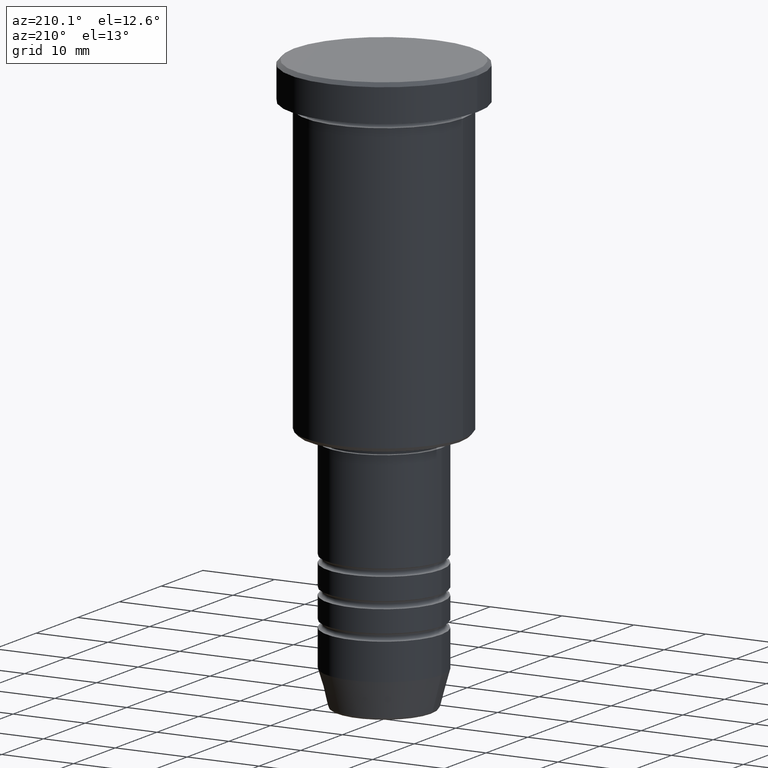
[diagram: clean part render]
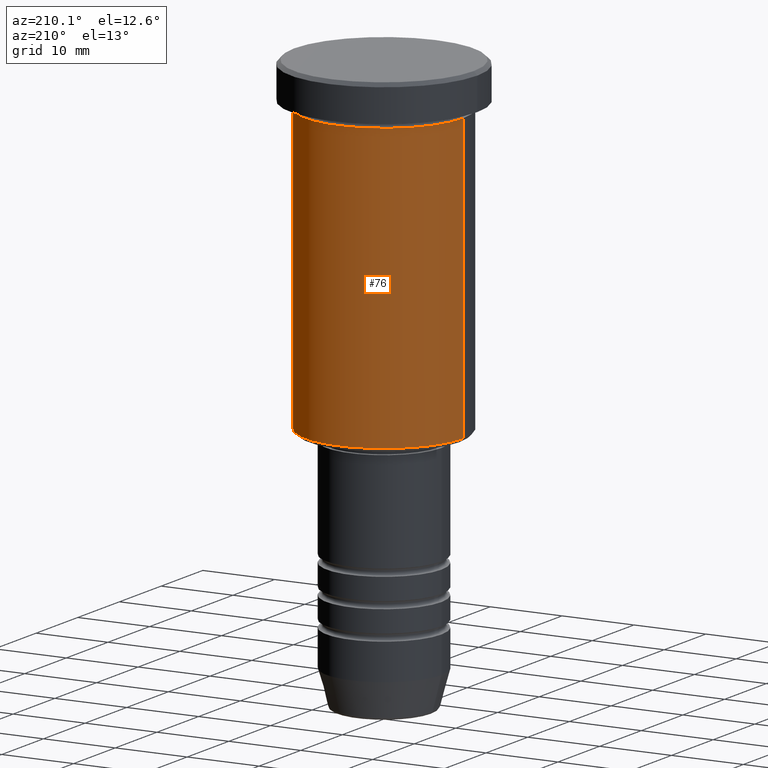
[diagram: same view with one face highlighted and labeled with its STEP entity id]
A machine part, auxiliary view. The second image highlights one B-rep face of the part: STEP entity #76.
In plain terms, the highlighted cylindrical surface (partial cylindrical patch) has radius 11 mm, axis along (-0, -0, 1).
Its self-contained STEP definition (entity closure, byte-faithful):
#2 = DIRECTION ( 'NONE',  ( -1.000000000000000000, 0.000000000000000000, 0.000000000000000000 ) ) ;
#6 = EDGE_LOOP ( 'NONE', ( #570, #182, #709, #44 ) ) ;
#8 = FACE_OUTER_BOUND ( 'NONE', #6, .T. ) ;
#16 = VECTOR ( 'NONE', #500, 1000.000000000000000 ) ;
#23 = CARTESIAN_POINT ( 'NONE',  ( 11.00000000000000000, 0.000000000000000000, -5.999999999999999112 ) ) ;
#35 = AXIS2_PLACEMENT_3D ( 'NONE', #494, #690, #953 ) ;
#44 = ORIENTED_EDGE ( 'NONE', *, *, #84, .F. ) ;
#55 = LINE ( 'NONE', #860, #16 ) ;
#76 = ADVANCED_FACE ( 'NONE', ( #8 ), #1096, .T. ) ;
#84 = EDGE_CURVE ( 'NONE', #512, #1025, #994, .T. ) ;
#170 = CARTESIAN_POINT ( 'NONE',  ( 11.00000000000000000, 0.000000000000000000, 0.000000000000000000 ) ) ;
#182 = ORIENTED_EDGE ( 'NONE', *, *, #769, .T. ) ;
#221 = CIRCLE ( 'NONE', #35, 11.00000000000000000 ) ;
#271 = DIRECTION ( 'NONE',  ( -0.000000000000000000, -0.000000000000000000, 1.000000000000000000 ) ) ;
#338 = VECTOR ( 'NONE', #271, 1000.000000000000000 ) ;
#350 = CARTESIAN_POINT ( 'NONE',  ( 11.00000000000000000, 0.000000000000000000, -45.49999999999999289 ) ) ;
#371 = CARTESIAN_POINT ( 'NONE',  ( 0.000000000000000000, 0.000000000000000000, 0.000000000000000000 ) ) ;
#415 = EDGE_CURVE ( 'NONE', #512, #578, #543, .T. ) ;
#494 = CARTESIAN_POINT ( 'NONE',  ( 0.000000000000000000, 0.000000000000000000, -5.999999999999999112 ) ) ;
#500 = DIRECTION ( 'NONE',  ( -0.000000000000000000, -0.000000000000000000, 1.000000000000000000 ) ) ;
#512 = VERTEX_POINT ( 'NONE', #350 ) ;
#543 = CIRCLE ( 'NONE', #702, 11.00000000000000000 ) ;
#554 = DIRECTION ( 'NONE',  ( -0.000000000000000000, -0.000000000000000000, 1.000000000000000000 ) ) ;
#555 = DIRECTION ( 'NONE',  ( 1.000000000000000000, 0.000000000000000000, 0.000000000000000000 ) ) ;
#570 = ORIENTED_EDGE ( 'NONE', *, *, #415, .T. ) ;
#578 = VERTEX_POINT ( 'NONE', #838 ) ;
#690 = DIRECTION ( 'NONE',  ( -0.000000000000000000, -0.000000000000000000, 1.000000000000000000 ) ) ;
#695 = CARTESIAN_POINT ( 'NONE',  ( -11.00000000000000000, 1.347111479062088405E-15, -5.999999999999999112 ) ) ;
#702 = AXIS2_PLACEMENT_3D ( 'NONE', #1105, #554, #2 ) ;
#709 = ORIENTED_EDGE ( 'NONE', *, *, #1157, .F. ) ;
#736 = DIRECTION ( 'NONE',  ( -0.000000000000000000, -0.000000000000000000, 1.000000000000000000 ) ) ;
#769 = EDGE_CURVE ( 'NONE', #578, #1152, #55, .T. ) ;
#838 = CARTESIAN_POINT ( 'NONE',  ( -11.00000000000000000, 1.347111479062088405E-15, -45.49999999999999289 ) ) ;
#860 = CARTESIAN_POINT ( 'NONE',  ( -11.00000000000000000, 1.347111479062088405E-15, 0.000000000000000000 ) ) ;
#953 = DIRECTION ( 'NONE',  ( 1.000000000000000000, 0.000000000000000000, 0.000000000000000000 ) ) ;
#994 = LINE ( 'NONE', #170, #338 ) ;
#1010 = AXIS2_PLACEMENT_3D ( 'NONE', #371, #736, #555 ) ;
#1025 = VERTEX_POINT ( 'NONE', #23 ) ;
#1096 = CYLINDRICAL_SURFACE ( 'NONE', #1010, 11.00000000000000000 ) ;
#1105 = CARTESIAN_POINT ( 'NONE',  ( 0.000000000000000000, 0.000000000000000000, -45.49999999999999289 ) ) ;
#1152 = VERTEX_POINT ( 'NONE', #695 ) ;
#1157 = EDGE_CURVE ( 'NONE', #1025, #1152, #221, .T. ) ;